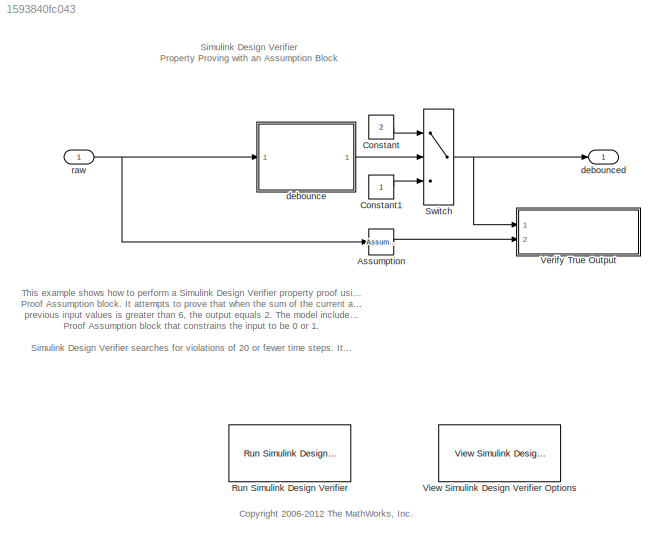
MODEL slx_1593840fc043
KIND model
CONFIG AbsTol = auto
CONFIG EnableMultiTasking = on
CONFIG FixedStep = 0.01
CONFIG MaxStep = auto
CONFIG MinStep = auto
CONFIG RelTol = 1e-3
CONFIG SampleTimeConstraint = Unconstrained
CONFIG Solver = FixedStepDiscrete
CONFIG SolverName = FixedStepDiscrete
CONFIG StartTime = 0.0
CONFIG StopTime = 10.0
BLOCK [Reference] Assumption  REF=sldvlib/Objectives and Constraints/Assumption
  AttributesFormatString = %<intervals>
  Ports = [1, 1]
  SourceBlock = sldvlib/Objectives and Constraints/Assumption
  SourceProductBaseCode = DV
  SourceProductName = Simulink Design Verifier
  SourceType = Design Verifier Assumption
BLOCK [Constant] Constant
  OutDataTypeStr = uint8
  Value = 2
BLOCK [Constant] Constant1
  OutDataTypeStr = uint8
BLOCK [Reference] Run Simulink Design Verifier   REF=sldvdemowidgets/Run Simulink Design Verifier 
  Ports = []
  SourceBlock = sldvdemowidgets/Run Simulink Design Verifier
  SourceProductBaseCode = DV
  SourceProductName = Simulink Design Verifier
BLOCK [Switch] Switch
  Criteria = u2 ~= 0
  InputSameDT = off
  SaturateOnIntegerOverflow = off
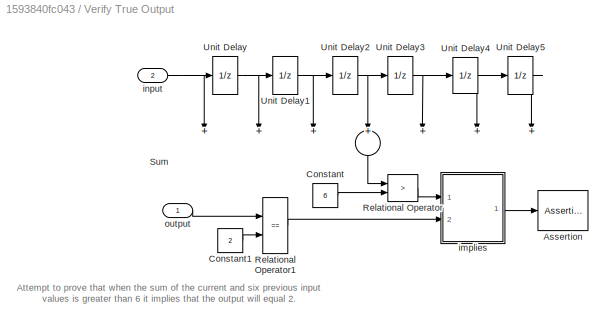
BLOCK [SubSystem] Verify True Output
  CopyFcn = sldvsubsys('copy');
  DisableCoverage = on
  LoadFcn = sldvsubsys('check')
  Ports = [2]
  PreSaveFcn = set_param(gcb,'SimViewingDevice','on');\nsldvsubsys('check');
  RequestExecContextInheritance = off
  SimViewingDevice = on
  Tag = VerificationSubsystem
  TreatAsAtomicUnit = on
  Variant = off
BLOCK [Assertion] Verify True Output/Assertion
BLOCK [Constant] Verify True Output/Constant
  OutDataTypeStr = double
  Value = 6
BLOCK [Constant] Verify True Output/Constant1
  OutDataTypeStr = uint8
  Value = 2
BLOCK [RelationalOperator] Verify True Output/Relational Operator
  InputSameDT = off
  Operator = >
  OutDataTypeStr = boolean
  Ports = [2, 1]
BLOCK [RelationalOperator] Verify True Output/Relational Operator1
  InputSameDT = off
  Operator = ==
  OutDataTypeStr = boolean
  Ports = [2, 1]
BLOCK [Sum] Verify True Output/Sum
  InputSameDT = off
  Inputs = +++++++
  OutDataTypeStr = Inherit: Inherit via internal rule
  Ports = [7, 1]
  SaturateOnIntegerOverflow = off
BLOCK [UnitDelay] Verify True Output/Unit Delay
  SampleTime = -1
BLOCK [UnitDelay] Verify True Output/Unit Delay1
  SampleTime = -1
BLOCK [UnitDelay] Verify True Output/Unit Delay2
  SampleTime = -1
BLOCK [UnitDelay] Verify True Output/Unit Delay3
  SampleTime = -1
BLOCK [UnitDelay] Verify True Output/Unit Delay4
  SampleTime = -1
BLOCK [UnitDelay] Verify True Output/Unit Delay5
  SampleTime = -1
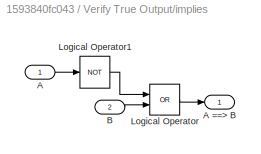
BLOCK [SubSystem] Verify True Output/implies
  Ports = [2, 1]
  RequestExecContextInheritance = off
  Variant = off
BLOCK [Inport] Verify True Output/implies/A
  IconDisplay = Port number
BLOCK [Outport] Verify True Output/implies/A ==> B
  IconDisplay = Port number
BLOCK [Inport] Verify True Output/implies/B
  IconDisplay = Port number
  Port = 2
BLOCK [Logic] Verify True Output/implies/Logical Operator
  AllPortsSameDT = off
  Operator = OR
  OutDataTypeStr = boolean
  Ports = [2, 1]
BLOCK [Logic] Verify True Output/implies/Logical Operator1
  AllPortsSameDT = off
  Operator = NOT
  OutDataTypeStr = boolean
  Ports = [1, 1]
BLOCK [Inport] Verify True Output/input
  IconDisplay = Port number
  Port = 2
BLOCK [Inport] Verify True Output/output
  IconDisplay = Port number
BLOCK [Reference] View Simulink Design Verifier Options  REF=sldvdemowidgets/View Simulink Design Verifier Options
  Ports = []
  SourceBlock = sldvdemowidgets/View Simulink Design Verifier Options
  SourceProductBaseCode = DV
  SourceProductName = Simulink Design Verifier
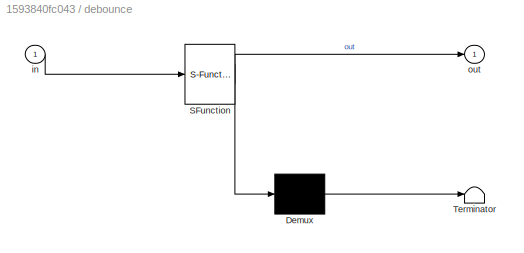
BLOCK [SubSystem] debounce
  ErrorFcn = Stateflow.Translate.translate
  PermitHierarchicalResolution = ExplicitOnly
  Ports = [1, 1]
  RequestExecContextInheritance = off
  SFBlockType = Chart
  TreatAsAtomicUnit = on
  Variant = off
BLOCK [Demux] debounce/ Demux 
  Outputs = 1
  Ports = [1, 1]
BLOCK [S-Function] debounce/ SFunction 
  EnableBusSupport = on
  FunctionName = sf_sfun
  PortCounts = [1 2]
  Ports = [1, 2]
  SFcnIsStateOwnerBlock = off
  SFunctionDeploymentMode = off
  Tag = Stateflow S-Function sldvdemo_debounce_adapted 1
BLOCK [Terminator] debounce/ Terminator 
BLOCK [Inport] debounce/in
  IconDisplay = Port number
BLOCK [Outport] debounce/out
  IconDisplay = Port number
BLOCK [Outport] debounced
  IconDisplay = Port number
  OutDataTypeStr = uint8
BLOCK [Inport] raw
  IconDisplay = Port number
  OutDataTypeStr = double
ANNOTATION (root): <copyright redacted>
ANNOTATION (root): Simulink Design Verifier Property Proving with an Assumption Block
ANNOTATION (root): This example shows how to perform a Simulink Design Verifier property proof using a Proof Assumption block. It attempts to prove that when the sum of the current and six previous input values is greater than 6, the output equals 2. The model includes a Proof Assumption block that constrains the input to be 0 or 1. Simulink Design Verifier searches for violations of 20 or fewer time steps. It is un...<+76ch>
ANNOTATION Verify True Output: Attempt to prove that when the sum of the current and six previous input values is greater than 6 it implies that the output will equal 2.
LINE Assumption:1 -> Verify True Output:2
LINE Constant1:1 -> Switch:3
LINE Constant:1 -> Switch:1
NET Switch:1 -> Verify True Output:1, debounced:1
LINE Verify True Output/Constant1:1 -> Verify True Output/Relational Operator1:2
LINE Verify True Output/Constant:1 -> Verify True Output/Relational Operator:2
LINE Verify True Output/Relational Operator1:1 -> Verify True Output/implies:2
LINE Verify True Output/Relational Operator:1 -> Verify True Output/implies:1
LINE Verify True Output/Sum:1 -> Verify True Output/Relational Operator:1
NET Verify True Output/Unit Delay1:1 -> Verify True Output/Sum:3, Verify True Output/Unit Delay2:1
NET Verify True Output/Unit Delay2:1 -> Verify True Output/Sum:4, Verify True Output/Unit Delay3:1
NET Verify True Output/Unit Delay3:1 -> Verify True Output/Sum:5, Verify True Output/Unit Delay4:1
NET Verify True Output/Unit Delay4:1 -> Verify True Output/Sum:6, Verify True Output/Unit Delay5:1
LINE Verify True Output/Unit Delay5:1 -> Verify True Output/Sum:7
NET Verify True Output/Unit Delay:1 -> Verify True Output/Sum:2, Verify True Output/Unit Delay1:1
LINE Verify True Output/implies/A:1 -> Verify True Output/implies/Logical Operator1:1
LINE Verify True Output/implies/B:1 -> Verify True Output/implies/Logical Operator:2
LINE Verify True Output/implies/Logical Operator1:1 -> Verify True Output/implies/Logical Operator:1
LINE Verify True Output/implies/Logical Operator:1 -> Verify True Output/implies/A ==> B:1
LINE Verify True Output/implies:1 -> Verify True Output/Assertion:1
NET Verify True Output/input:1 -> Verify True Output/Sum:1, Verify True Output/Unit Delay:1
LINE Verify True Output/output:1 -> Verify True Output/Relational Operator1:1
LINE debounce:1 -> Switch:2
NET raw:1 -> Assumption:1, debounce:1
note: NET lines group one-source signal fan-out (src -> all destinations, sorted); 1:1 wires keep LINE
CHART debounce states=4 transitions=7
  STATE_LABEL 'To_on\nen: cnt = 0.0;\ndu: cnt = cnt + 1;'
  STATE_LABEL 'Off\nen: out = false;'
  STATE_LABEL 'To_off\nen: cnt = 0.0;\ndu: cnt = cnt + 1;'
  STATE_LABEL 'On\nen: out = true;'
